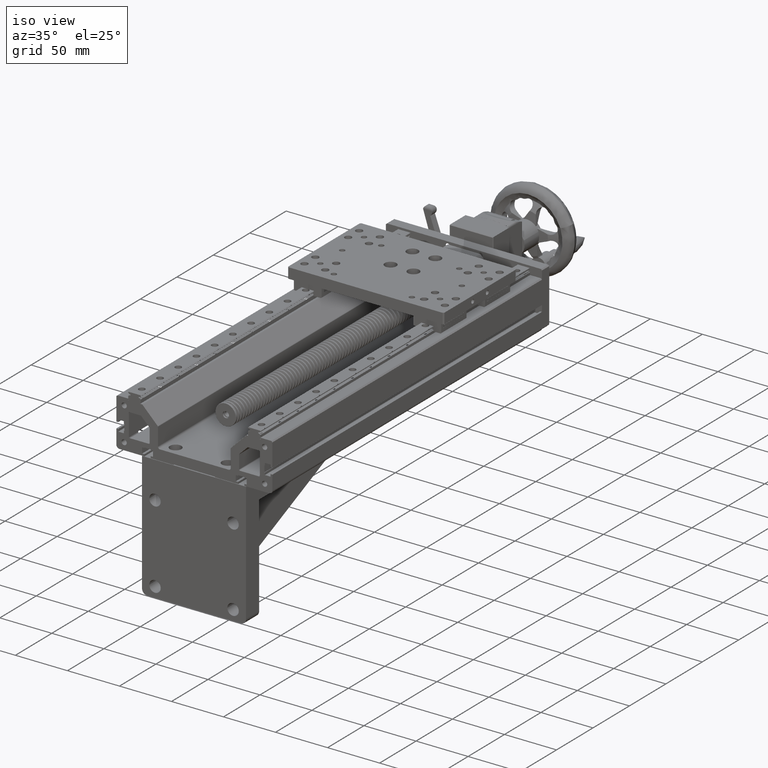
[diagram: clean part render]
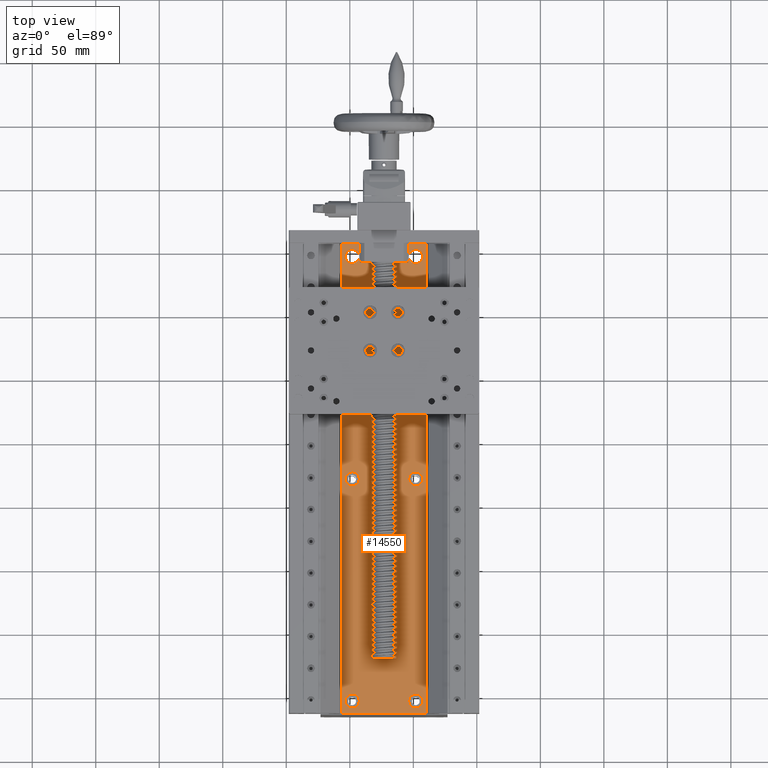
[diagram: tour spotlight — one face highlighted and labeled with its STEP entity id]
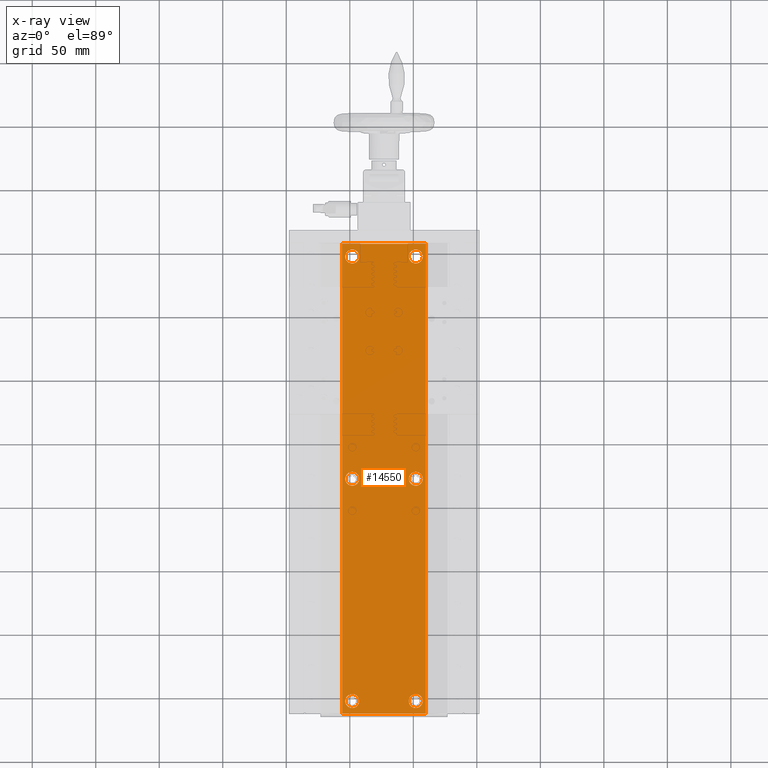
[diagram: x-ray of the same camera — body ghosted, this tour face saturated]
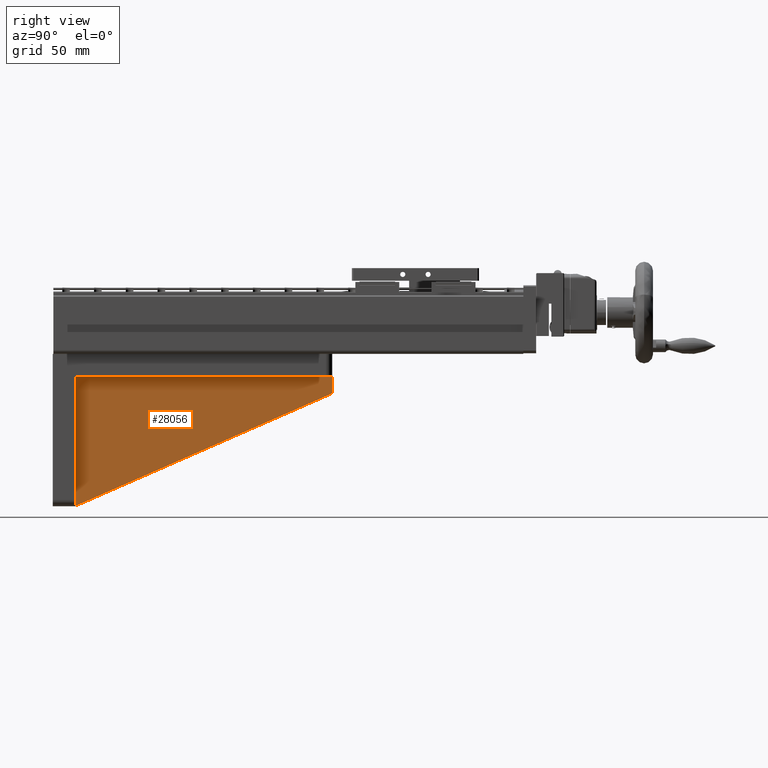
[diagram: tour spotlight — one face highlighted and labeled with its STEP entity id]
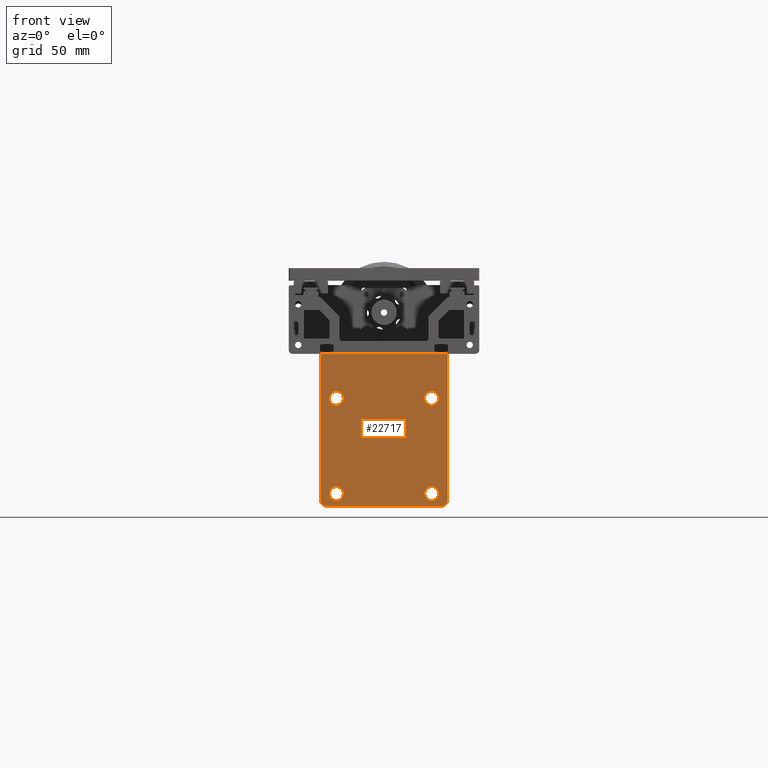
[diagram: tour spotlight — one face highlighted and labeled with its STEP entity id]
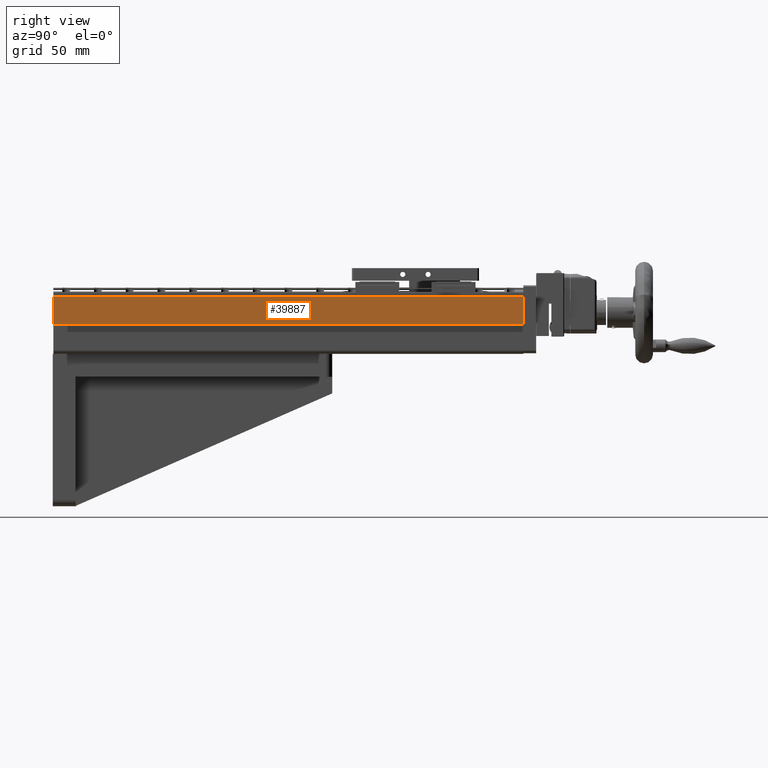
[diagram: tour spotlight — one face highlighted and labeled with its STEP entity id]
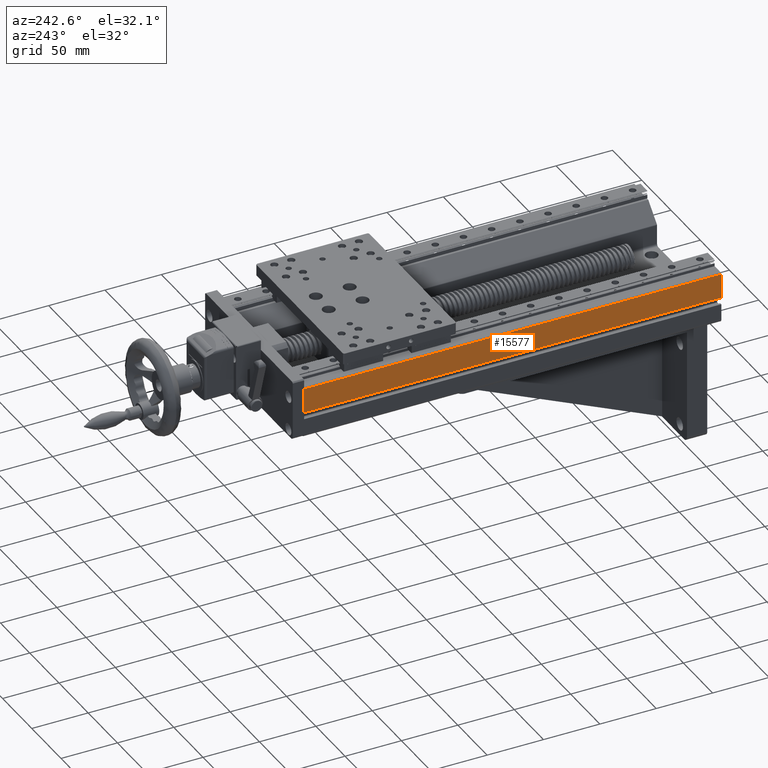
[diagram: tour spotlight — one face highlighted and labeled with its STEP entity id]
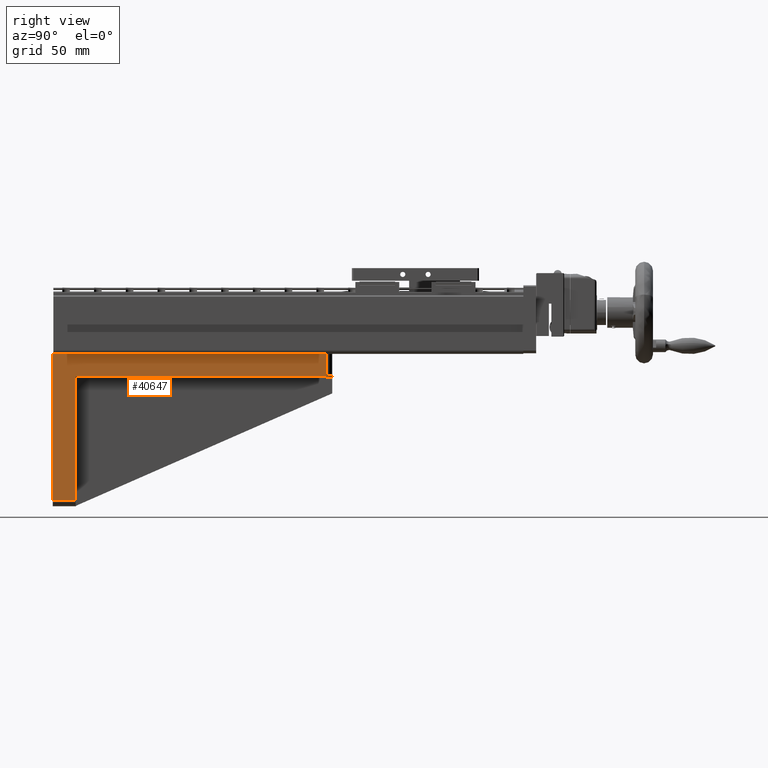
[diagram: tour spotlight — one face highlighted and labeled with its STEP entity id]
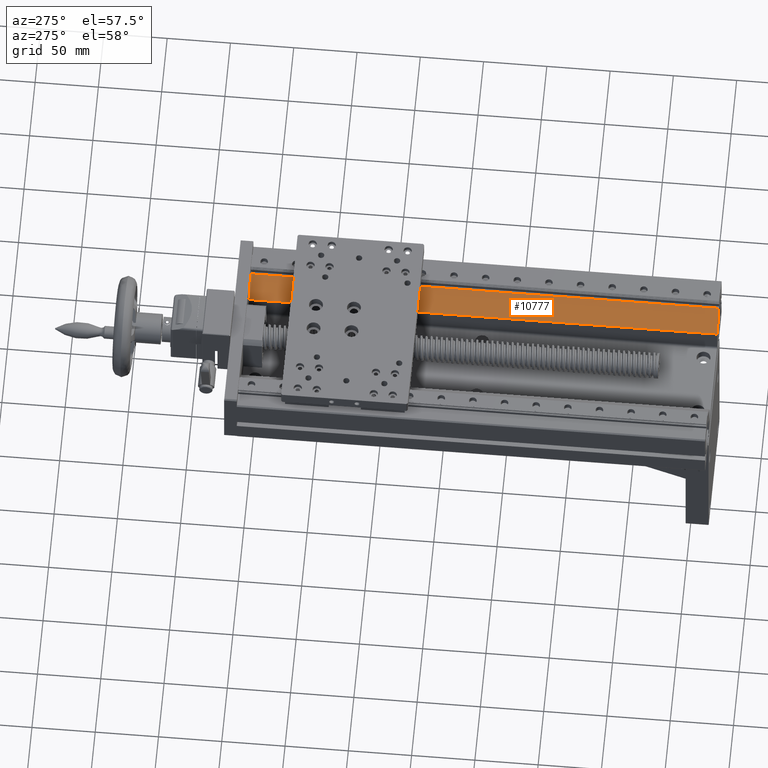
[diagram: tour spotlight — one face highlighted and labeled with its STEP entity id]
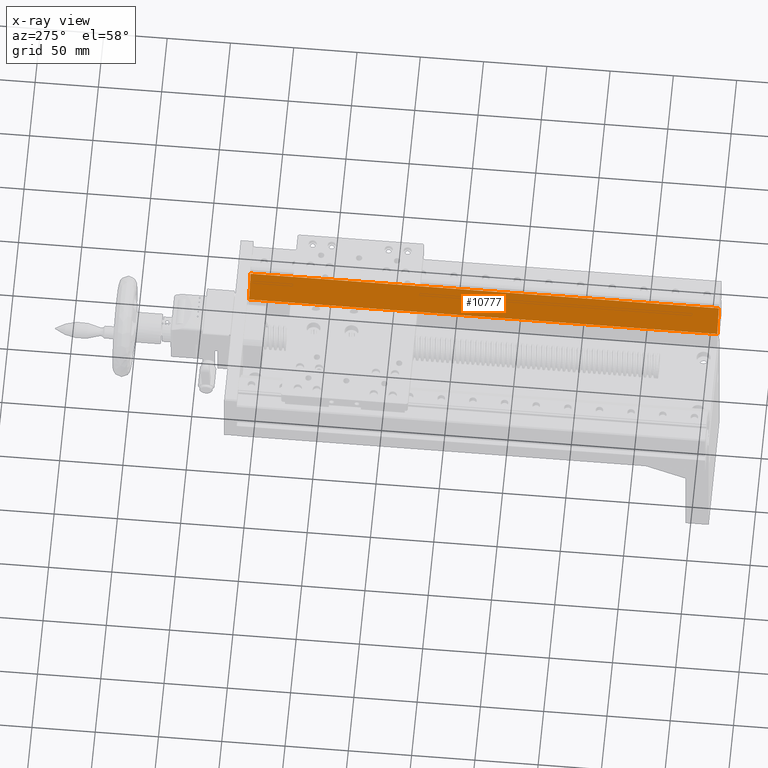
[diagram: x-ray of the same camera — body ghosted, this tour face saturated]
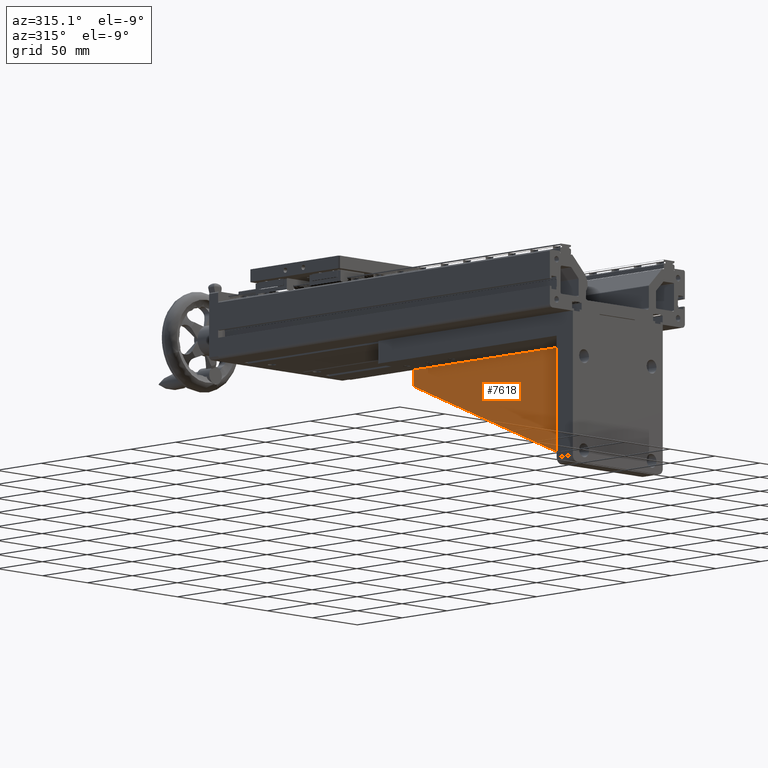
[diagram: tour spotlight — one face highlighted and labeled with its STEP entity id]
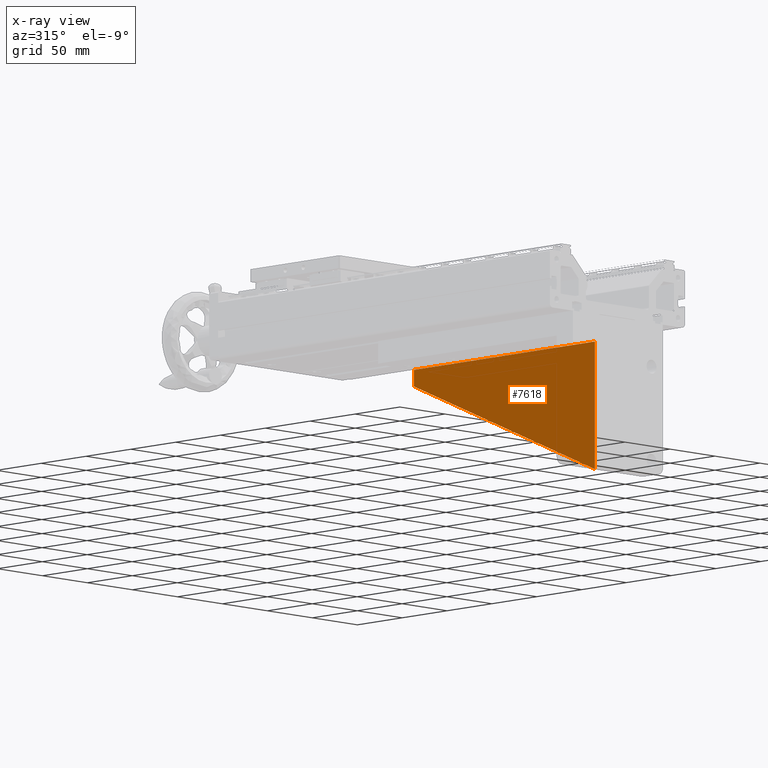
[diagram: x-ray of the same camera — body ghosted, this tour face saturated]
A machine part: a face-by-face anatomy tour. The part has 944 B-rep faces; the first image is the clean iso view, then the 8 largest visible faces are spotlighted one at a time (largest first), each with its STEP entity span.

Face 1 — top view, entity #14550. An x-ray twin of the same camera follows (body ghosted, this face saturated) — the face is partly hidden behind the body. In plain terms, the highlighted planar face has unit normal (0, 0, 1).
Definition (entity closure, byte-faithful):
#138 = EDGE_CURVE ( 'NONE', #23096, #27037, #366, .T. ) ;
#301 = CIRCLE ( 'NONE', #26352, 5.500000000000005329 ) ;
#366 = CIRCLE ( 'NONE', #20450, 5.500000000000005329 ) ;
#425 = CIRCLE ( 'NONE', #8553, 5.500000000000005329 ) ;
#464 = VERTEX_POINT ( 'NONE', #38641 ) ;
#1148 = DIRECTION ( 'NONE',  ( -1.000000000000000000, -6.123233995742214106E-17, 1.031308999433431077E-14 ) ) ;
#1571 = ORIENTED_EDGE ( 'NONE', *, *, #22392, .F. ) ;
#2426 = PLANE ( 'NONE',  #18468 ) ;
#2556 = DIRECTION ( 'NONE',  ( -1.053011137364023571E-16, -1.000000000000000000, 3.821117613674764034E-17 ) ) ;
#2557 = CARTESIAN_POINT ( 'NONE',  ( -48.07974840947948536, 70.78653025440200963, 70.00000000000206057 ) ) ;
#3031 = ORIENTED_EDGE ( 'NONE', *, *, #7118, .F. ) ;
#3588 = EDGE_CURVE ( 'NONE', #13025, #29306, #31675, .T. ) ;
#5533 = DIRECTION ( 'NONE',  ( 1.031308999433431234E-14, 3.821117613674655566E-17, 1.000000000000000000 ) ) ;
#5661 = VERTEX_POINT ( 'NONE', #16564 ) ;
#6310 = CARTESIAN_POINT ( 'NONE',  ( -56.07974840947716189, 255.7865302544020096, 70.00000000000206057 ) ) ;
#6465 = VERTEX_POINT ( 'NONE', #23214 ) ;
#6688 = EDGE_CURVE ( 'NONE', #20585, #464, #40563, .T. ) ;
#6933 = DIRECTION ( 'NONE',  ( 1.031308999433431234E-14, 3.821117613674655566E-17, 1.000000000000000000 ) ) ;
#7118 = EDGE_CURVE ( 'NONE', #43348, #44187, #301, .T. ) ;
#7934 = ORIENTED_EDGE ( 'NONE', *, *, #3588, .F. ) ;
#8250 = CIRCLE ( 'NONE', #18658, 5.500000000000005329 ) ;
#8553 = AXIS2_PLACEMENT_3D ( 'NONE', #20041, #26373, #16535 ) ;
#8644 = DIRECTION ( 'NONE',  ( 0.000000000000000000, 1.000000000000000000, 0.000000000000000000 ) ) ;
#8941 = CARTESIAN_POINT ( 'NONE',  ( 9.920251590522788376, -114.2134697455979904, 70.00000000000028422 ) ) ;
#9172 = DIRECTION ( 'NONE',  ( 1.053011137364023571E-16, 1.000000000000000000, -3.821117613674764034E-17 ) ) ;
#9213 = EDGE_CURVE ( 'NONE', #38414, #39870, #425, .T. ) ;
#9524 = CARTESIAN_POINT ( 'NONE',  ( 1.920251590520560825, 245.7865302544020096, 70.00000000000028422 ) ) ;
#9680 = DIRECTION ( 'NONE',  ( 0.000000000000000000, 1.000000000000000000, 0.000000000000000000 ) ) ;
#9854 = FACE_BOUND ( 'NONE', #11330, .T. ) ;
#10381 = DIRECTION ( 'NONE',  ( 1.182766006347821876E-16, 1.000000000000000000, 0.000000000000000000 ) ) ;
#11330 = EDGE_LOOP ( 'NONE', ( #27924, #28112 ) ) ;
#11524 = AXIS2_PLACEMENT_3D ( 'NONE', #40715, #44511, #8644 ) ;
#11748 = CARTESIAN_POINT ( 'NONE',  ( 1.920251590520503981, 65.28653025440200963, 70.00000000000028422 ) ) ;
#11887 = EDGE_CURVE ( 'NONE', #6465, #5661, #23682, .T. ) ;
#12693 = ORIENTED_EDGE ( 'NONE', *, *, #23118, .F. ) ;
#12901 = FACE_BOUND ( 'NONE', #45450, .T. ) ;
#12919 = DIRECTION ( 'NONE',  ( -1.000000000000000000, -6.123233995742214106E-17, 1.031308999433431077E-14 ) ) ;
#13025 = VERTEX_POINT ( 'NONE', #40076 ) ;
#13189 = CARTESIAN_POINT ( 'NONE',  ( -48.07974840947948536, -104.2134697455979762, 70.00000000000206057 ) ) ;
#13580 = FACE_OUTER_BOUND ( 'NONE', #31998, .T. ) ;
#13897 = ORIENTED_EDGE ( 'NONE', *, *, #19386, .T. ) ;
#14550 = ADVANCED_FACE ( 'NONE', ( #34866, #38410, #27831, #12901, #31102, #9854, #13580 ), #2426, .T. ) ;
#15104 = ORIENTED_EDGE ( 'NONE', *, *, #9213, .F. ) ;
#15343 = DIRECTION ( 'NONE',  ( 1.031308999433431234E-14, 3.821117613674655566E-17, 1.000000000000000000 ) ) ;
#15716 = CARTESIAN_POINT ( 'NONE',  ( -56.07974840947716189, 255.7865302544020096, 70.00000000000206057 ) ) ;
#15816 = AXIS2_PLACEMENT_3D ( 'NONE', #24176, #6933, #46040 ) ;
#16371 = VECTOR ( 'NONE', #2556, 1000.000000000000000 ) ;
#16382 = CARTESIAN_POINT ( 'NONE',  ( 9.920251590522843443, 255.7865302544020096, 70.00000000000028422 ) ) ;
#16535 = DIRECTION ( 'NONE',  ( 1.182766006347821876E-16, 1.000000000000000000, 0.000000000000000000 ) ) ;
#16564 = CARTESIAN_POINT ( 'NONE',  ( -48.07974840947952089, -109.7134697455979762, 70.00000000000206057 ) ) ;
#17665 = CARTESIAN_POINT ( 'NONE',  ( 9.920251590522843443, 255.7865302544020096, 70.00000000000028422 ) ) ;
#17968 = VERTEX_POINT ( 'NONE', #15716 ) ;
#18468 = AXIS2_PLACEMENT_3D ( 'NONE', #16382, #41469, #9172 ) ;
#18658 = AXIS2_PLACEMENT_3D ( 'NONE', #33903, #34363, #30376 ) ;
#18947 = CARTESIAN_POINT ( 'NONE',  ( 1.920251590520505980, -98.71346974559796195, 70.00000000000028422 ) ) ;
#19147 = EDGE_LOOP ( 'NONE', ( #12693, #3031 ) ) ;
#19386 = EDGE_CURVE ( 'NONE', #17968, #464, #42820, .T. ) ;
#19758 = CARTESIAN_POINT ( 'NONE',  ( 1.920251590520505314, 70.78653025440200963, 70.00000000000028422 ) ) ;
#20041 = CARTESIAN_POINT ( 'NONE',  ( 1.920251590520505314, 70.78653025440200963, 70.00000000000028422 ) ) ;
#20241 = LINE ( 'NONE', #17665, #16371 ) ;
#20450 = AXIS2_PLACEMENT_3D ( 'NONE', #21555, #35633, #10381 ) ;
#20553 = ORIENTED_EDGE ( 'NONE', *, *, #44103, .T. ) ;
#20585 = VERTEX_POINT ( 'NONE', #43052 ) ;
#20922 = AXIS2_PLACEMENT_3D ( 'NONE', #19758, #44419, #30739 ) ;
#21555 = CARTESIAN_POINT ( 'NONE',  ( 1.920251590520505314, -104.2134697455979619, 70.00000000000028422 ) ) ;
#21708 = EDGE_CURVE ( 'NONE', #29306, #13025, #8250, .T. ) ;
#21916 = EDGE_LOOP ( 'NONE', ( #44160, #44238 ) ) ;
#22392 = EDGE_CURVE ( 'NONE', #39870, #38414, #36659, .T. ) ;
#23096 = VERTEX_POINT ( 'NONE', #18947 ) ;
#23118 = EDGE_CURVE ( 'NONE', #44187, #43348, #32100, .T. ) ;
#23212 = CIRCLE ( 'NONE', #15816, 5.500000000000005329 ) ;
#23214 = CARTESIAN_POINT ( 'NONE',  ( -48.07974840947948536, -98.71346974559797616, 70.00000000000206057 ) ) ;
#23539 = EDGE_CURVE ( 'NONE', #28836, #32189, #34364, .T. ) ;
#23682 = CIRCLE ( 'NONE', #27447, 5.500000000000005329 ) ;
#23684 = ORIENTED_EDGE ( 'NONE', *, *, #42358, .F. ) ;
#23939 = CIRCLE ( 'NONE', #29159, 5.500000000000005329 ) ;
#24176 = CARTESIAN_POINT ( 'NONE',  ( -48.07974840947948536, -104.2134697455979762, 70.00000000000206057 ) ) ;
#24287 = ORIENTED_EDGE ( 'NONE', *, *, #138, .F. ) ;
#24298 = VERTEX_POINT ( 'NONE', #39133 ) ;
#26072 = CARTESIAN_POINT ( 'NONE',  ( 1.920251590520561491, 251.2865302544020096, 70.00000000000028422 ) ) ;
#26352 = AXIS2_PLACEMENT_3D ( 'NONE', #29597, #27935, #27229 ) ;
#26373 = DIRECTION ( 'NONE',  ( 1.031308999433431234E-14, 3.821117613674655566E-17, 1.000000000000000000 ) ) ;
#26488 = ORIENTED_EDGE ( 'NONE', *, *, #6688, .F. ) ;
#26512 = VECTOR ( 'NONE', #12919, 1000.000000000000000 ) ;
#27037 = VERTEX_POINT ( 'NONE', #31806 ) ;
#27229 = DIRECTION ( 'NONE',  ( 1.182766006347821876E-16, 1.000000000000000000, 0.000000000000000000 ) ) ;
#27274 = DIRECTION ( 'NONE',  ( 1.182766006347821876E-16, 1.000000000000000000, 0.000000000000000000 ) ) ;
#27447 = AXIS2_PLACEMENT_3D ( 'NONE', #13189, #30249, #9680 ) ;
#27831 = FACE_BOUND ( 'NONE', #19147, .T. ) ;
#27903 = EDGE_LOOP ( 'NONE', ( #15104, #1571 ) ) ;
#27924 = ORIENTED_EDGE ( 'NONE', *, *, #42054, .F. ) ;
#27935 = DIRECTION ( 'NONE',  ( 1.031308999433431234E-14, 3.821117613674655566E-17, 1.000000000000000000 ) ) ;
#28112 = ORIENTED_EDGE ( 'NONE', *, *, #23539, .F. ) ;
#28836 = VERTEX_POINT ( 'NONE', #34129 ) ;
#29159 = AXIS2_PLACEMENT_3D ( 'NONE', #33123, #15343, #43955 ) ;
#29306 = VERTEX_POINT ( 'NONE', #32824 ) ;
#29597 = CARTESIAN_POINT ( 'NONE',  ( 1.920251590520560825, 245.7865302544020096, 70.00000000000028422 ) ) ;
#30249 = DIRECTION ( 'NONE',  ( 1.031308999433431234E-14, 3.821117613674655566E-17, 1.000000000000000000 ) ) ;
#30376 = DIRECTION ( 'NONE',  ( 0.000000000000000000, 1.000000000000000000, 0.000000000000000000 ) ) ;
#30739 = DIRECTION ( 'NONE',  ( 1.182766006347821876E-16, 1.000000000000000000, 0.000000000000000000 ) ) ;
#30803 = ORIENTED_EDGE ( 'NONE', *, *, #21708, .F. ) ;
#31102 = FACE_BOUND ( 'NONE', #27903, .T. ) ;
#31161 = EDGE_CURVE ( 'NONE', #5661, #6465, #23212, .T. ) ;
#31675 = CIRCLE ( 'NONE', #11524, 5.500000000000005329 ) ;
#31806 = CARTESIAN_POINT ( 'NONE',  ( 1.920251590520470009, -109.7134697455979619, 70.00000000000028422 ) ) ;
#31998 = EDGE_LOOP ( 'NONE', ( #26488, #37310, #20553, #13897 ) ) ;
#32100 = CIRCLE ( 'NONE', #45656, 5.500000000000005329 ) ;
#32189 = VERTEX_POINT ( 'NONE', #34497 ) ;
#32597 = EDGE_LOOP ( 'NONE', ( #7934, #30803 ) ) ;
#32824 = CARTESIAN_POINT ( 'NONE',  ( -48.07974840947946404, 240.2865302544020096, 70.00000000000206057 ) ) ;
#32879 = LINE ( 'NONE', #35944, #35894 ) ;
#32914 = AXIS2_PLACEMENT_3D ( 'NONE', #44861, #5533, #38009 ) ;
#33123 = CARTESIAN_POINT ( 'NONE',  ( 1.920251590520505314, -104.2134697455979619, 70.00000000000028422 ) ) ;
#33903 = CARTESIAN_POINT ( 'NONE',  ( -48.07974840947942852, 245.7865302544020096, 70.00000000000206057 ) ) ;
#34129 = CARTESIAN_POINT ( 'NONE',  ( -48.07974840947948536, 65.28653025440200963, 70.00000000000206057 ) ) ;
#34363 = DIRECTION ( 'NONE',  ( 1.031308999433431234E-14, 3.821117613674655566E-17, 1.000000000000000000 ) ) ;
#34364 = CIRCLE ( 'NONE', #44896, 5.500000000000005329 ) ;
#34497 = CARTESIAN_POINT ( 'NONE',  ( -48.07974840947948536, 76.28653025440202384, 70.00000000000206057 ) ) ;
#34866 = FACE_BOUND ( 'NONE', #21916, .T. ) ;
#35022 = DIRECTION ( 'NONE',  ( -1.053011137364023571E-16, -1.000000000000000000, 3.821117613674764034E-17 ) ) ;
#35095 = CARTESIAN_POINT ( 'NONE',  ( 1.920251590520505980, 76.28653025440202384, 70.00000000000028422 ) ) ;
#35633 = DIRECTION ( 'NONE',  ( 1.031308999433431234E-14, 3.821117613674655566E-17, 1.000000000000000000 ) ) ;
#35894 = VECTOR ( 'NONE', #1148, 1000.000000000000000 ) ;
#35944 = CARTESIAN_POINT ( 'NONE',  ( 9.920251590522843443, 255.7865302544020096, 70.00000000000028422 ) ) ;
#36659 = CIRCLE ( 'NONE', #20922, 5.500000000000005329 ) ;
#36755 = DIRECTION ( 'NONE',  ( 1.031308999433431234E-14, 3.821117613674655566E-17, 1.000000000000000000 ) ) ;
#37108 = CARTESIAN_POINT ( 'NONE',  ( 1.920251590520525520, 240.2865302544020096, 70.00000000000028422 ) ) ;
#37310 = ORIENTED_EDGE ( 'NONE', *, *, #40421, .F. ) ;
#37408 = CIRCLE ( 'NONE', #32914, 5.500000000000005329 ) ;
#37595 = DIRECTION ( 'NONE',  ( 1.031308999433431234E-14, 3.821117613674655566E-17, 1.000000000000000000 ) ) ;
#38009 = DIRECTION ( 'NONE',  ( 0.000000000000000000, 1.000000000000000000, 0.000000000000000000 ) ) ;
#38410 = FACE_BOUND ( 'NONE', #32597, .T. ) ;
#38414 = VERTEX_POINT ( 'NONE', #35095 ) ;
#38641 = CARTESIAN_POINT ( 'NONE',  ( -56.07974840947721162, -114.2134697455980046, 70.00000000000206057 ) ) ;
#39133 = CARTESIAN_POINT ( 'NONE',  ( 9.920251590522843443, 255.7865302544020096, 70.00000000000028422 ) ) ;
#39870 = VERTEX_POINT ( 'NONE', #11748 ) ;
#40076 = CARTESIAN_POINT ( 'NONE',  ( -48.07974840947942852, 251.2865302544020096, 70.00000000000206057 ) ) ;
#40421 = EDGE_CURVE ( 'NONE', #24298, #20585, #20241, .T. ) ;
#40563 = LINE ( 'NONE', #8941, #26512 ) ;
#40715 = CARTESIAN_POINT ( 'NONE',  ( -48.07974840947942852, 245.7865302544020096, 70.00000000000206057 ) ) ;
#41469 = DIRECTION ( 'NONE',  ( 1.031308999433431234E-14, 3.821117613674655566E-17, 1.000000000000000000 ) ) ;
#42054 = EDGE_CURVE ( 'NONE', #32189, #28836, #37408, .T. ) ;
#42358 = EDGE_CURVE ( 'NONE', #27037, #23096, #23939, .T. ) ;
#42820 = LINE ( 'NONE', #6310, #43252 ) ;
#43052 = CARTESIAN_POINT ( 'NONE',  ( 9.920251590522788376, -114.2134697455979904, 70.00000000000028422 ) ) ;
#43252 = VECTOR ( 'NONE', #35022, 1000.000000000000000 ) ;
#43348 = VERTEX_POINT ( 'NONE', #37108 ) ;
#43955 = DIRECTION ( 'NONE',  ( 1.182766006347821876E-16, 1.000000000000000000, 0.000000000000000000 ) ) ;
#44103 = EDGE_CURVE ( 'NONE', #24298, #17968, #32879, .T. ) ;
#44160 = ORIENTED_EDGE ( 'NONE', *, *, #11887, .F. ) ;
#44187 = VERTEX_POINT ( 'NONE', #26072 ) ;
#44238 = ORIENTED_EDGE ( 'NONE', *, *, #31161, .F. ) ;
#44419 = DIRECTION ( 'NONE',  ( 1.031308999433431234E-14, 3.821117613674655566E-17, 1.000000000000000000 ) ) ;
#44511 = DIRECTION ( 'NONE',  ( 1.031308999433431234E-14, 3.821117613674655566E-17, 1.000000000000000000 ) ) ;
#44861 = CARTESIAN_POINT ( 'NONE',  ( -48.07974840947948536, 70.78653025440200963, 70.00000000000206057 ) ) ;
#44896 = AXIS2_PLACEMENT_3D ( 'NONE', #2557, #37595, #45380 ) ;
#45380 = DIRECTION ( 'NONE',  ( 0.000000000000000000, 1.000000000000000000, 0.000000000000000000 ) ) ;
#45450 = EDGE_LOOP ( 'NONE', ( #24287, #23684 ) ) ;
#45656 = AXIS2_PLACEMENT_3D ( 'NONE', #9524, #36755, #27274 ) ;
#46040 = DIRECTION ( 'NONE',  ( 0.000000000000000000, 1.000000000000000000, 0.000000000000000000 ) ) ;

Face 2 — right view, entity #28056. In plain terms, the highlighted planar face has unit normal (-1, 0, 0).
Definition (entity closure, byte-faithful):
#343 = CARTESIAN_POINT ( 'NONE',  ( -15.57974840947949602, 105.2865302544019954, 59.99999999999991473 ) ) ;
#1028 = VERTEX_POINT ( 'NONE', #41311 ) ;
#3590 = EDGE_CURVE ( 'NONE', #26193, #1028, #30595, .T. ) ;
#3965 = VECTOR ( 'NONE', #40850, 1000.000000000000000 ) ;
#5597 = ORIENTED_EDGE ( 'NONE', *, *, #3590, .T. ) ;
#6092 = LINE ( 'NONE', #20307, #32672 ) ;
#7115 = LINE ( 'NONE', #21298, #35199 ) ;
#7248 = CARTESIAN_POINT ( 'NONE',  ( -15.57974840948075190, -96.21346974559810405, -59.50000000000013500 ) ) ;
#7275 = PLANE ( 'NONE',  #39430 ) ;
#7727 = ORIENTED_EDGE ( 'NONE', *, *, #42851, .F. ) ;
#8454 = EDGE_LOOP ( 'NONE', ( #7727, #12014, #39294, #5597, #24570 ) ) ;
#10810 = VERTEX_POINT ( 'NONE', #37711 ) ;
#10992 = DIRECTION ( 'NONE',  ( 1.047444401652940007E-14, 0.000000000000000000, 1.000000000000000000 ) ) ;
#12014 = ORIENTED_EDGE ( 'NONE', *, *, #32742, .T. ) ;
#13131 = EDGE_CURVE ( 'NONE', #22063, #26193, #6092, .T. ) ;
#14483 = DIRECTION ( 'NONE',  ( -1.000000000000000000, 0.000000000000000000, 1.047444401652940007E-14 ) ) ;
#14528 = DIRECTION ( 'NONE',  ( 1.047444401652940007E-14, 1.541976423090499972E-15, 1.000000000000000000 ) ) ;
#16028 = LINE ( 'NONE', #38028, #3965 ) ;
#18180 = CARTESIAN_POINT ( 'NONE',  ( -15.57974840947968431, -96.71346974559800458, 41.99999999999991473 ) ) ;
#20307 = CARTESIAN_POINT ( 'NONE',  ( -15.57974840947968431, 105.2865302544019954, 41.99999999999991473 ) ) ;
#21298 = CARTESIAN_POINT ( 'NONE',  ( -15.57974840947982287, 105.2865302544019954, 28.84665226781850933 ) ) ;
#22063 = VERTEX_POINT ( 'NONE', #45400 ) ;
#24570 = ORIENTED_EDGE ( 'NONE', *, *, #32144, .F. ) ;
#26157 = CARTESIAN_POINT ( 'NONE',  ( -15.57974840947968431, -96.71346974559799037, 41.99999999999991473 ) ) ;
#26193 = VERTEX_POINT ( 'NONE', #18180 ) ;
#28056 = ADVANCED_FACE ( 'NONE', ( #39320 ), #7275, .F. ) ;
#30595 = LINE ( 'NONE', #26157, #37682 ) ;
#32144 = EDGE_CURVE ( 'NONE', #41507, #1028, #16028, .T. ) ;
#32323 = LINE ( 'NONE', #343, #33039 ) ;
#32672 = VECTOR ( 'NONE', #34593, 1000.000000000000000 ) ;
#32742 = EDGE_CURVE ( 'NONE', #10810, #22063, #32323, .T. ) ;
#33039 = VECTOR ( 'NONE', #14528, 1000.000000000000000 ) ;
#34593 = DIRECTION ( 'NONE',  ( -0.000000000000000000, -1.000000000000000000, -0.000000000000000000 ) ) ;
#35199 = VECTOR ( 'NONE', #35611, 1000.000000000000000 ) ;
#35611 = DIRECTION ( 'NONE',  ( -4.205961414682332769E-15, -0.9158392611404475581, -0.4015450756188140846 ) ) ;
#35782 = CARTESIAN_POINT ( 'NONE',  ( -15.57974840947949602, -114.7134697455980046, 59.99999999999991473 ) ) ;
#37650 = DIRECTION ( 'NONE',  ( -1.047444401652940007E-14, -0.000000000000000000, -1.000000000000000000 ) ) ;
#37682 = VECTOR ( 'NONE', #37650, 1000.000000000000000 ) ;
#37711 = CARTESIAN_POINT ( 'NONE',  ( -15.57974840947982287, 105.2865302544019386, 28.84665226781850222 ) ) ;
#38028 = CARTESIAN_POINT ( 'NONE',  ( -15.57974840948075190, -96.21346974559799037, -59.50000000000009237 ) ) ;
#39294 = ORIENTED_EDGE ( 'NONE', *, *, #13131, .T. ) ;
#39320 = FACE_OUTER_BOUND ( 'NONE', #8454, .T. ) ;
#39430 = AXIS2_PLACEMENT_3D ( 'NONE', #35782, #14483, #10992 ) ;
#40850 = DIRECTION ( 'NONE',  ( -7.406550393246719117E-15, -0.7071067811865549002, -0.7071067811865401342 ) ) ;
#41311 = CARTESIAN_POINT ( 'NONE',  ( -15.57974840948075190, -96.71346974559799037, -60.00000000000007816 ) ) ;
#41507 = VERTEX_POINT ( 'NONE', #7248 ) ;
#42851 = EDGE_CURVE ( 'NONE', #10810, #41507, #7115, .T. ) ;
#45400 = CARTESIAN_POINT ( 'NONE',  ( -15.57974840947968431, 105.2865302544019954, 41.99999999999991473 ) ) ;

Face 3 — front view, entity #22717. In plain terms, the highlighted planar face has unit normal (0, 1, 0).
Definition (entity closure, byte-faithful):
#102 = VERTEX_POINT ( 'NONE', #44399 ) ;
#602 = ORIENTED_EDGE ( 'NONE', *, *, #17028, .F. ) ;
#834 = CARTESIAN_POINT ( 'NONE',  ( -73.07974840947950668, -114.7134697455980046, 60.00000000000051870 ) ) ;
#963 = AXIS2_PLACEMENT_3D ( 'NONE', #9136, #12866, #5433 ) ;
#1067 = CARTESIAN_POINT ( 'NONE',  ( -60.57974840948065065, -114.7134697455980046, -49.99999999999961631 ) ) ;
#2916 = VERTEX_POINT ( 'NONE', #3412 ) ;
#3412 = CARTESIAN_POINT ( 'NONE',  ( -73.07974840947950668, -114.7134697455980046, 60.00000000000051870 ) ) ;
#3499 = VERTEX_POINT ( 'NONE', #11470 ) ;
#3651 = DIRECTION ( 'NONE',  ( -1.000000000000000000, 0.000000000000000000, 1.047444401652940007E-14 ) ) ;
#4600 = AXIS2_PLACEMENT_3D ( 'NONE', #25085, #7360, #17843 ) ;
#5021 = DIRECTION ( 'NONE',  ( 0.000000000000000000, -1.000000000000000000, 0.000000000000000000 ) ) ;
#5033 = CARTESIAN_POINT ( 'NONE',  ( 26.92025159052051464, -114.7134697455980046, 59.99999999999946709 ) ) ;
#5255 = DIRECTION ( 'NONE',  ( 1.000000000000000000, 0.000000000000000000, -1.009293658750142596E-14 ) ) ;
#5259 = VERTEX_POINT ( 'NONE', #20975 ) ;
#5433 = DIRECTION ( 'NONE',  ( 1.000000000000000000, 0.000000000000000000, -1.009293658750140861E-14 ) ) ;
#5498 = FACE_OUTER_BOUND ( 'NONE', #27466, .T. ) ;
#5890 = DIRECTION ( 'NONE',  ( -0.000000000000000000, 1.000000000000000000, -0.000000000000000000 ) ) ;
#6766 = CARTESIAN_POINT ( 'NONE',  ( -60.57974840947986195, -114.7134697455980046, 25.00000000000038369 ) ) ;
#6836 = CARTESIAN_POINT ( 'NONE',  ( -73.07974840948070039, -114.7134697455980046, -54.99999999999949551 ) ) ;
#7360 = DIRECTION ( 'NONE',  ( -0.000000000000000000, 1.000000000000000000, -0.000000000000000000 ) ) ;
#8041 = LINE ( 'NONE', #834, #33196 ) ;
#8433 = LINE ( 'NONE', #8877, #25607 ) ;
#8717 = ORIENTED_EDGE ( 'NONE', *, *, #37281, .T. ) ;
#8877 = CARTESIAN_POINT ( 'NONE',  ( 26.92025159051924632, -114.7134697455980046, -60.00000000000052580 ) ) ;
#8945 = VECTOR ( 'NONE', #44563, 1000.000000000000000 ) ;
#8963 = VERTEX_POINT ( 'NONE', #24661 ) ;
#8966 = VERTEX_POINT ( 'NONE', #35211 ) ;
#9136 = CARTESIAN_POINT ( 'NONE',  ( 14.42025159051934757, -114.7134697455980046, -50.00000000000040501 ) ) ;
#9186 = EDGE_LOOP ( 'NONE', ( #602, #45518 ) ) ;
#10423 = CARTESIAN_POINT ( 'NONE',  ( 19.92025159052014516, -114.7134697455980046, 24.99999999999954170 ) ) ;
#10672 = VERTEX_POINT ( 'NONE', #10423 ) ;
#10973 = CIRCLE ( 'NONE', #26622, 5.499999999999998224 ) ;
#11470 = CARTESIAN_POINT ( 'NONE',  ( -66.07974840947986195, -114.7134697455980046, 25.00000000000044054 ) ) ;
#11544 = ORIENTED_EDGE ( 'NONE', *, *, #33739, .F. ) ;
#11980 = DIRECTION ( 'NONE',  ( 0.000000000000000000, -1.000000000000000000, 0.000000000000000000 ) ) ;
#12086 = EDGE_CURVE ( 'NONE', #8966, #16882, #41622, .T. ) ;
#12351 = CARTESIAN_POINT ( 'NONE',  ( 14.42025159052013450, -114.7134697455980046, 24.99999999999959854 ) ) ;
#12686 = AXIS2_PLACEMENT_3D ( 'NONE', #44723, #20054, #20284 ) ;
#12688 = CARTESIAN_POINT ( 'NONE',  ( -73.07974840948075723, -114.7134697455980046, -59.99999999999948130 ) ) ;
#12866 = DIRECTION ( 'NONE',  ( 0.000000000000000000, -1.000000000000000000, 0.000000000000000000 ) ) ;
#13263 = DIRECTION ( 'NONE',  ( 0.000000000000000000, -1.000000000000000000, 0.000000000000000000 ) ) ;
#14340 = CIRCLE ( 'NONE', #963, 5.500000000000007994 ) ;
#14466 = CIRCLE ( 'NONE', #32398, 5.499999999999998224 ) ;
#14707 = CIRCLE ( 'NONE', #31879, 4.999999999999990230 ) ;
#15205 = EDGE_LOOP ( 'NONE', ( #31824, #16011 ) ) ;
#15474 = CARTESIAN_POINT ( 'NONE',  ( -60.57974840947986195, -114.7134697455980046, 25.00000000000038369 ) ) ;
#15507 = PLANE ( 'NONE',  #32933 ) ;
#15858 = CARTESIAN_POINT ( 'NONE',  ( 14.42025159051934757, -114.7134697455980046, -50.00000000000040501 ) ) ;
#16011 = ORIENTED_EDGE ( 'NONE', *, *, #35795, .F. ) ;
#16142 = EDGE_CURVE ( 'NONE', #10672, #29420, #30489, .T. ) ;
#16632 = VECTOR ( 'NONE', #37732, 1000.000000000000000 ) ;
#16711 = ORIENTED_EDGE ( 'NONE', *, *, #43911, .F. ) ;
#16834 = DIRECTION ( 'NONE',  ( 1.000000000000000000, 0.000000000000000000, -9.714451465470138661E-15 ) ) ;
#16882 = VERTEX_POINT ( 'NONE', #34320 ) ;
#17028 = EDGE_CURVE ( 'NONE', #24676, #3499, #45591, .T. ) ;
#17221 = CIRCLE ( 'NONE', #4600, 4.999999999999990230 ) ;
#17843 = DIRECTION ( 'NONE',  ( 1.000000000000000000, 0.000000000000000000, -1.110223024625158749E-14 ) ) ;
#17887 = EDGE_CURVE ( 'NONE', #38420, #2916, #30190, .T. ) ;
#17943 = CIRCLE ( 'NONE', #23896, 5.500000000000011546 ) ;
#18017 = ORIENTED_EDGE ( 'NONE', *, *, #35323, .F. ) ;
#18268 = CARTESIAN_POINT ( 'NONE',  ( 8.920251590520123841, -114.7134697455980046, 24.99999999999965894 ) ) ;
#19337 = DIRECTION ( 'NONE',  ( 1.000000000000000000, 0.000000000000000000, -1.072374512422024024E-14 ) ) ;
#19347 = DIRECTION ( 'NONE',  ( 0.000000000000000000, -1.000000000000000000, 0.000000000000000000 ) ) ;
#19462 = DIRECTION ( 'NONE',  ( -1.000000000000000000, 0.000000000000000000, 1.047444401652940007E-14 ) ) ;
#19915 = FACE_BOUND ( 'NONE', #31069, .T. ) ;
#20054 = DIRECTION ( 'NONE',  ( 0.000000000000000000, -1.000000000000000000, 0.000000000000000000 ) ) ;
#20284 = DIRECTION ( 'NONE',  ( 1.000000000000000000, 0.000000000000000000, -1.072374512422024024E-14 ) ) ;
#20975 = CARTESIAN_POINT ( 'NONE',  ( 19.92025159051936001, -114.7134697455980046, -50.00000000000046185 ) ) ;
#22009 = DIRECTION ( 'NONE',  ( 0.000000000000000000, -1.000000000000000000, 0.000000000000000000 ) ) ;
#22620 = VERTEX_POINT ( 'NONE', #25331 ) ;
#22717 = ADVANCED_FACE ( 'NONE', ( #5498, #19915, #40798, #33510, #45056 ), #15507, .F. ) ;
#23896 = AXIS2_PLACEMENT_3D ( 'NONE', #12351, #13263, #19337 ) ;
#24661 = CARTESIAN_POINT ( 'NONE',  ( -68.07974840948075723, -114.7134697455980046, -59.99999999999953815 ) ) ;
#24676 = VERTEX_POINT ( 'NONE', #35475 ) ;
#25085 = CARTESIAN_POINT ( 'NONE',  ( -68.07974840948070039, -114.7134697455980046, -54.99999999999955236 ) ) ;
#25331 = CARTESIAN_POINT ( 'NONE',  ( 26.92025159051929961, -114.7134697455980046, -55.00000000000053291 ) ) ;
#25607 = VECTOR ( 'NONE', #36736, 1000.000000000000000 ) ;
#26220 = DIRECTION ( 'NONE',  ( 1.000000000000000000, 0.000000000000000000, -1.072374512422026548E-14 ) ) ;
#26241 = LINE ( 'NONE', #12688, #16632 ) ;
#26622 = AXIS2_PLACEMENT_3D ( 'NONE', #15474, #11980, #26220 ) ;
#26638 = EDGE_LOOP ( 'NONE', ( #41314, #11544 ) ) ;
#26702 = CARTESIAN_POINT ( 'NONE',  ( -73.07974840948075723, -114.7134697455980046, -59.99999999999948130 ) ) ;
#26902 = EDGE_CURVE ( 'NONE', #3499, #24676, #10973, .T. ) ;
#27466 = EDGE_LOOP ( 'NONE', ( #39191, #45052, #43005, #18017, #8717, #35543 ) ) ;
#27753 = EDGE_CURVE ( 'NONE', #22620, #37844, #14707, .T. ) ;
#29420 = VERTEX_POINT ( 'NONE', #18268 ) ;
#30018 = EDGE_CURVE ( 'NONE', #5259, #102, #43306, .T. ) ;
#30190 = LINE ( 'NONE', #41468, #8945 ) ;
#30489 = CIRCLE ( 'NONE', #12686, 5.500000000000011546 ) ;
#31069 = EDGE_LOOP ( 'NONE', ( #31601, #16711 ) ) ;
#31601 = ORIENTED_EDGE ( 'NONE', *, *, #16142, .F. ) ;
#31824 = ORIENTED_EDGE ( 'NONE', *, *, #12086, .F. ) ;
#31879 = AXIS2_PLACEMENT_3D ( 'NONE', #37463, #5890, #16834 ) ;
#32398 = AXIS2_PLACEMENT_3D ( 'NONE', #34180, #5021, #5255 ) ;
#32933 = AXIS2_PLACEMENT_3D ( 'NONE', #26702, #33968, #19462 ) ;
#33196 = VECTOR ( 'NONE', #3651, 1000.000000000000000 ) ;
#33479 = EDGE_CURVE ( 'NONE', #37844, #8963, #26241, .T. ) ;
#33510 = FACE_BOUND ( 'NONE', #26638, .T. ) ;
#33739 = EDGE_CURVE ( 'NONE', #102, #5259, #14340, .T. ) ;
#33968 = DIRECTION ( 'NONE',  ( 0.000000000000000000, 1.000000000000000000, 0.000000000000000000 ) ) ;
#34180 = CARTESIAN_POINT ( 'NONE',  ( -60.57974840948065065, -114.7134697455980046, -49.99999999999961631 ) ) ;
#34320 = CARTESIAN_POINT ( 'NONE',  ( -66.07974840948065776, -114.7134697455980046, -49.99999999999955946 ) ) ;
#34567 = DIRECTION ( 'NONE',  ( 1.000000000000000000, 0.000000000000000000, -1.072374512422026548E-14 ) ) ;
#34883 = AXIS2_PLACEMENT_3D ( 'NONE', #1067, #22009, #43170 ) ;
#35211 = CARTESIAN_POINT ( 'NONE',  ( -55.07974840948066486, -114.7134697455980046, -49.99999999999968026 ) ) ;
#35323 = EDGE_CURVE ( 'NONE', #44527, #22620, #8433, .T. ) ;
#35475 = CARTESIAN_POINT ( 'NONE',  ( -55.07974840947986905, -114.7134697455980046, 25.00000000000032685 ) ) ;
#35543 = ORIENTED_EDGE ( 'NONE', *, *, #17887, .F. ) ;
#35795 = EDGE_CURVE ( 'NONE', #16882, #8966, #14466, .T. ) ;
#36736 = DIRECTION ( 'NONE',  ( -1.047444401652940007E-14, -0.000000000000000000, -1.000000000000000000 ) ) ;
#37281 = EDGE_CURVE ( 'NONE', #44527, #2916, #8041, .T. ) ;
#37463 = CARTESIAN_POINT ( 'NONE',  ( 21.92025159051929606, -114.7134697455980046, -55.00000000000049027 ) ) ;
#37732 = DIRECTION ( 'NONE',  ( -1.000000000000000000, 0.000000000000000000, 1.047444401652940007E-14 ) ) ;
#37844 = VERTEX_POINT ( 'NONE', #45218 ) ;
#38038 = AXIS2_PLACEMENT_3D ( 'NONE', #6766, #42107, #34567 ) ;
#38420 = VERTEX_POINT ( 'NONE', #6836 ) ;
#39191 = ORIENTED_EDGE ( 'NONE', *, *, #42189, .F. ) ;
#40301 = AXIS2_PLACEMENT_3D ( 'NONE', #15858, #19347, #44709 ) ;
#40798 = FACE_BOUND ( 'NONE', #9186, .T. ) ;
#41314 = ORIENTED_EDGE ( 'NONE', *, *, #30018, .F. ) ;
#41468 = CARTESIAN_POINT ( 'NONE',  ( -73.07974840947950668, -114.7134697455980046, 60.00000000000051870 ) ) ;
#41622 = CIRCLE ( 'NONE', #34883, 5.499999999999998224 ) ;
#42107 = DIRECTION ( 'NONE',  ( 0.000000000000000000, -1.000000000000000000, 0.000000000000000000 ) ) ;
#42189 = EDGE_CURVE ( 'NONE', #8963, #38420, #17221, .T. ) ;
#43005 = ORIENTED_EDGE ( 'NONE', *, *, #27753, .F. ) ;
#43170 = DIRECTION ( 'NONE',  ( 1.000000000000000000, 0.000000000000000000, -1.009293658750142596E-14 ) ) ;
#43306 = CIRCLE ( 'NONE', #40301, 5.500000000000007994 ) ;
#43911 = EDGE_CURVE ( 'NONE', #29420, #10672, #17943, .T. ) ;
#44399 = CARTESIAN_POINT ( 'NONE',  ( 8.920251590519336915, -114.7134697455980046, -50.00000000000034817 ) ) ;
#44527 = VERTEX_POINT ( 'NONE', #5033 ) ;
#44563 = DIRECTION ( 'NONE',  ( 1.047444401652940007E-14, 0.000000000000000000, 1.000000000000000000 ) ) ;
#44709 = DIRECTION ( 'NONE',  ( 1.000000000000000000, 0.000000000000000000, -1.009293658750140861E-14 ) ) ;
#44723 = CARTESIAN_POINT ( 'NONE',  ( 14.42025159052013450, -114.7134697455980046, 24.99999999999959854 ) ) ;
#45052 = ORIENTED_EDGE ( 'NONE', *, *, #33479, .F. ) ;
#45056 = FACE_BOUND ( 'NONE', #15205, .T. ) ;
#45218 = CARTESIAN_POINT ( 'NONE',  ( 21.92025159051924277, -114.7134697455980046, -60.00000000000048317 ) ) ;
#45518 = ORIENTED_EDGE ( 'NONE', *, *, #26902, .F. ) ;
#45591 = CIRCLE ( 'NONE', #38038, 5.499999999999998224 ) ;

Face 4 — right view, entity #39887. In plain terms, the highlighted planar face has unit normal (1, -0, -0).
Definition (entity closure, byte-faithful):
#1346 = LINE ( 'NONE', #29810, #15061 ) ;
#1633 = ORIENTED_EDGE ( 'NONE', *, *, #2497, .F. ) ;
#2497 = EDGE_CURVE ( 'NONE', #22839, #32293, #1346, .T. ) ;
#3754 = CARTESIAN_POINT ( 'NONE',  ( 51.92025159052254679, 255.7865302544020096, 83.00000000000018474 ) ) ;
#5267 = EDGE_CURVE ( 'NONE', #7653, #22839, #28225, .T. ) ;
#6990 = ORIENTED_EDGE ( 'NONE', *, *, #29279, .T. ) ;
#7541 = ORIENTED_EDGE ( 'NONE', *, *, #5267, .F. ) ;
#7653 = VERTEX_POINT ( 'NONE', #35674 ) ;
#10367 = VECTOR ( 'NONE', #25567, 1000.000000000000000 ) ;
#10707 = VECTOR ( 'NONE', #28690, 1000.000000000000000 ) ;
#11332 = CARTESIAN_POINT ( 'NONE',  ( 51.92025159052276706, 255.7865302544020096, 105.0000000000004263 ) ) ;
#13606 = EDGE_LOOP ( 'NONE', ( #1633, #7541, #6990, #34415 ) ) ;
#15061 = VECTOR ( 'NONE', #23221, 1000.000000000000000 ) ;
#16801 = FACE_OUTER_BOUND ( 'NONE', #13606, .T. ) ;
#17107 = CARTESIAN_POINT ( 'NONE',  ( 51.92025159052248995, -114.2134697455979904, 83.00000000000018474 ) ) ;
#17453 = VERTEX_POINT ( 'NONE', #37535 ) ;
#18179 = CARTESIAN_POINT ( 'NONE',  ( 51.92025159052276706, 255.7865302544020096, 105.0000000000004263 ) ) ;
#18542 = LINE ( 'NONE', #11332, #10367 ) ;
#18979 = PLANE ( 'NONE',  #37274 ) ;
#22232 = DIRECTION ( 'NONE',  ( 1.000000000000000000, -1.053011137364027515E-16, -1.031308999433431077E-14 ) ) ;
#22839 = VERTEX_POINT ( 'NONE', #17107 ) ;
#23221 = DIRECTION ( 'NONE',  ( 1.031308999433431234E-14, 3.821117613674655566E-17, 1.000000000000000000 ) ) ;
#25567 = DIRECTION ( 'NONE',  ( 1.031308999433431234E-14, 3.821117613674655566E-17, 1.000000000000000000 ) ) ;
#28225 = LINE ( 'NONE', #3754, #10707 ) ;
#28690 = DIRECTION ( 'NONE',  ( -1.053011137364023571E-16, -1.000000000000000000, 3.821117613674764034E-17 ) ) ;
#29279 = EDGE_CURVE ( 'NONE', #7653, #17453, #18542, .T. ) ;
#29810 = CARTESIAN_POINT ( 'NONE',  ( 51.92025159052271732, -114.2134697455979904, 105.0000000000004263 ) ) ;
#32293 = VERTEX_POINT ( 'NONE', #35197 ) ;
#34415 = ORIENTED_EDGE ( 'NONE', *, *, #40053, .T. ) ;
#35197 = CARTESIAN_POINT ( 'NONE',  ( 51.92025159052271732, -114.2134697455979904, 105.0000000000004263 ) ) ;
#35674 = CARTESIAN_POINT ( 'NONE',  ( 51.92025159052254679, 255.7865302544020096, 83.00000000000018474 ) ) ;
#37274 = AXIS2_PLACEMENT_3D ( 'NONE', #43640, #22232, #41638 ) ;
#37535 = CARTESIAN_POINT ( 'NONE',  ( 51.92025159052276706, 255.7865302544020096, 105.0000000000004263 ) ) ;
#39887 = ADVANCED_FACE ( 'NONE', ( #16801 ), #18979, .T. ) ;
#40053 = EDGE_CURVE ( 'NONE', #17453, #32293, #40194, .T. ) ;
#40194 = LINE ( 'NONE', #18179, #44828 ) ;
#40440 = DIRECTION ( 'NONE',  ( -1.053011137364023571E-16, -1.000000000000000000, 3.821117613674764034E-17 ) ) ;
#41638 = DIRECTION ( 'NONE',  ( 1.053011137364023571E-16, 1.000000000000000000, -3.821117613674764034E-17 ) ) ;
#43640 = CARTESIAN_POINT ( 'NONE',  ( 51.92025159052276706, 255.7865302544020096, 105.0000000000004263 ) ) ;
#44828 = VECTOR ( 'NONE', #40440, 1000.000000000000000 ) ;

Face 5 — auxiliary view, entity #15577. In plain terms, the highlighted planar face has unit normal (-1, -0, -0).
Definition (entity closure, byte-faithful):
#1149 = EDGE_LOOP ( 'NONE', ( #16972, #11119, #21063, #18755 ) ) ;
#1243 = CARTESIAN_POINT ( 'NONE',  ( -98.07974840947753137, -114.2134697455980046, 83.00000000000196110 ) ) ;
#6455 = CARTESIAN_POINT ( 'NONE',  ( -98.07974840947753137, 255.7865302544020096, 83.00000000000196110 ) ) ;
#6657 = PLANE ( 'NONE',  #20111 ) ;
#10324 = DIRECTION ( 'NONE',  ( 7.043040270567619133E-14, -3.821117613674161295E-17, -1.000000000000000000 ) ) ;
#10610 = DIRECTION ( 'NONE',  ( 7.043040270567619133E-14, -3.821117613674161295E-17, -1.000000000000000000 ) ) ;
#11119 = ORIENTED_EDGE ( 'NONE', *, *, #28136, .F. ) ;
#12212 = VECTOR ( 'NONE', #20427, 1000.000000000000000 ) ;
#15577 = ADVANCED_FACE ( 'NONE', ( #24601 ), #6657, .T. ) ;
#16972 = ORIENTED_EDGE ( 'NONE', *, *, #40952, .F. ) ;
#18477 = VECTOR ( 'NONE', #44497, 1000.000000000000000 ) ;
#18755 = ORIENTED_EDGE ( 'NONE', *, *, #35659, .T. ) ;
#20111 = AXIS2_PLACEMENT_3D ( 'NONE', #45778, #39374, #28104 ) ;
#20427 = DIRECTION ( 'NONE',  ( -1.053011137364023571E-16, -1.000000000000000000, 3.821117613674764034E-17 ) ) ;
#21063 = ORIENTED_EDGE ( 'NONE', *, *, #39744, .T. ) ;
#22391 = LINE ( 'NONE', #30118, #18477 ) ;
#23626 = CARTESIAN_POINT ( 'NONE',  ( -98.07974840947908035, -114.2134697455980046, 105.0000000000022027 ) ) ;
#23718 = VECTOR ( 'NONE', #10610, 1000.000000000000000 ) ;
#24601 = FACE_OUTER_BOUND ( 'NONE', #1149, .T. ) ;
#25297 = CARTESIAN_POINT ( 'NONE',  ( -98.07974840947908035, 255.7865302544020096, 105.0000000000022027 ) ) ;
#28104 = DIRECTION ( 'NONE',  ( 7.043040270567617871E-14, -3.821117613674161295E-17, -1.000000000000000000 ) ) ;
#28136 = EDGE_CURVE ( 'NONE', #32651, #45237, #22391, .T. ) ;
#30118 = CARTESIAN_POINT ( 'NONE',  ( -98.07974840947908035, 255.7865302544020096, 105.0000000000022027 ) ) ;
#31583 = LINE ( 'NONE', #34873, #32837 ) ;
#32651 = VERTEX_POINT ( 'NONE', #36297 ) ;
#32837 = VECTOR ( 'NONE', #10324, 1000.000000000000000 ) ;
#33686 = CARTESIAN_POINT ( 'NONE',  ( -98.07974840947753137, 255.7865302544020096, 83.00000000000196110 ) ) ;
#34873 = CARTESIAN_POINT ( 'NONE',  ( -98.07974840947908035, -114.2134697455980046, 105.0000000000022027 ) ) ;
#35659 = EDGE_CURVE ( 'NONE', #36564, #37780, #38483, .T. ) ;
#36297 = CARTESIAN_POINT ( 'NONE',  ( -98.07974840947908035, 255.7865302544020096, 105.0000000000022027 ) ) ;
#36564 = VERTEX_POINT ( 'NONE', #33686 ) ;
#37780 = VERTEX_POINT ( 'NONE', #1243 ) ;
#38483 = LINE ( 'NONE', #6455, #12212 ) ;
#39374 = DIRECTION ( 'NONE',  ( -1.000000000000000000, -6.123233995742521023E-17, -7.043040270567617871E-14 ) ) ;
#39744 = EDGE_CURVE ( 'NONE', #32651, #36564, #43398, .T. ) ;
#40952 = EDGE_CURVE ( 'NONE', #45237, #37780, #31583, .T. ) ;
#43398 = LINE ( 'NONE', #25297, #23718 ) ;
#44497 = DIRECTION ( 'NONE',  ( -1.053011137364023571E-16, -1.000000000000000000, 3.821117613674764034E-17 ) ) ;
#45237 = VERTEX_POINT ( 'NONE', #23626 ) ;
#45778 = CARTESIAN_POINT ( 'NONE',  ( -98.07974840947908035, 255.7865302544020096, 105.0000000000022027 ) ) ;

Face 6 — right view, entity #40647. In plain terms, the highlighted planar face has unit normal (-1, 0, 0).
Definition (entity closure, byte-faithful):
#645 = PLANE ( 'NONE',  #27550 ) ;
#3781 = ORIENTED_EDGE ( 'NONE', *, *, #9084, .F. ) ;
#3992 = VECTOR ( 'NONE', #22701, 1000.000000000000000 ) ;
#4609 = LINE ( 'NONE', #39662, #36965 ) ;
#5033 = CARTESIAN_POINT ( 'NONE',  ( 26.92025159052051464, -114.7134697455980046, 59.99999999999946709 ) ) ;
#8433 = LINE ( 'NONE', #8877, #25607 ) ;
#8877 = CARTESIAN_POINT ( 'NONE',  ( 26.92025159051924632, -114.7134697455980046, -60.00000000000052580 ) ) ;
#9084 = EDGE_CURVE ( 'NONE', #37077, #12929, #4609, .T. ) ;
#10429 = DIRECTION ( 'NONE',  ( 1.047444401652940007E-14, 0.000000000000000000, 1.000000000000000000 ) ) ;
#11037 = EDGE_CURVE ( 'NONE', #24165, #39636, #24032, .T. ) ;
#11116 = CARTESIAN_POINT ( 'NONE',  ( 26.92025159052050753, -114.7134697455980046, 59.99999999999946709 ) ) ;
#12681 = CARTESIAN_POINT ( 'NONE',  ( 26.92025159052050753, 100.2865302544019812, 59.99999999999946709 ) ) ;
#12929 = VERTEX_POINT ( 'NONE', #42244 ) ;
#15732 = LINE ( 'NONE', #37717, #3992 ) ;
#18116 = DIRECTION ( 'NONE',  ( -1.000000000000000000, 0.000000000000000000, 1.047444401652940007E-14 ) ) ;
#18767 = VECTOR ( 'NONE', #33558, 1000.000000000000000 ) ;
#19268 = CARTESIAN_POINT ( 'NONE',  ( 26.92025159052031569, -114.7134697455980046, 41.99999999999946709 ) ) ;
#21398 = VECTOR ( 'NONE', #34341, 1000.000000000000000 ) ;
#21686 = EDGE_LOOP ( 'NONE', ( #41892, #42604, #44600, #25725, #3781, #40651 ) ) ;
#22046 = DIRECTION ( 'NONE',  ( -1.047444401652940007E-14, -0.000000000000000000, -1.000000000000000000 ) ) ;
#22535 = CARTESIAN_POINT ( 'NONE',  ( 26.92025159052032279, -96.71346974559799037, 41.99999999999946709 ) ) ;
#22620 = VERTEX_POINT ( 'NONE', #25331 ) ;
#22701 = DIRECTION ( 'NONE',  ( -0.000000000000000000, -1.000000000000000000, -0.000000000000000000 ) ) ;
#22769 = LINE ( 'NONE', #19268, #18767 ) ;
#23442 = CARTESIAN_POINT ( 'NONE',  ( 26.92025159052031569, 100.2865302544019812, 41.99999999999946709 ) ) ;
#24032 = LINE ( 'NONE', #31524, #21398 ) ;
#24165 = VERTEX_POINT ( 'NONE', #12681 ) ;
#25331 = CARTESIAN_POINT ( 'NONE',  ( 26.92025159051929961, -114.7134697455980046, -55.00000000000053291 ) ) ;
#25607 = VECTOR ( 'NONE', #36736, 1000.000000000000000 ) ;
#25725 = ORIENTED_EDGE ( 'NONE', *, *, #35092, .F. ) ;
#27550 = AXIS2_PLACEMENT_3D ( 'NONE', #11116, #18116, #10429 ) ;
#29642 = LINE ( 'NONE', #40681, #36150 ) ;
#31524 = CARTESIAN_POINT ( 'NONE',  ( 26.92025159052050753, 100.2865302544019812, 59.99999999999946709 ) ) ;
#33291 = EDGE_CURVE ( 'NONE', #39636, #37077, #22769, .T. ) ;
#33558 = DIRECTION ( 'NONE',  ( -0.000000000000000000, -1.000000000000000000, -0.000000000000000000 ) ) ;
#34341 = DIRECTION ( 'NONE',  ( -1.047444401652940007E-14, -0.000000000000000000, -1.000000000000000000 ) ) ;
#35092 = EDGE_CURVE ( 'NONE', #12929, #22620, #15732, .T. ) ;
#35323 = EDGE_CURVE ( 'NONE', #44527, #22620, #8433, .T. ) ;
#36150 = VECTOR ( 'NONE', #43778, 1000.000000000000000 ) ;
#36405 = EDGE_CURVE ( 'NONE', #24165, #44527, #29642, .T. ) ;
#36736 = DIRECTION ( 'NONE',  ( -1.047444401652940007E-14, -0.000000000000000000, -1.000000000000000000 ) ) ;
#36965 = VECTOR ( 'NONE', #22046, 1000.000000000000000 ) ;
#37077 = VERTEX_POINT ( 'NONE', #22535 ) ;
#37717 = CARTESIAN_POINT ( 'NONE',  ( 26.92025159051929961, -114.7134697455980046, -55.00000000000053291 ) ) ;
#39636 = VERTEX_POINT ( 'NONE', #23442 ) ;
#39662 = CARTESIAN_POINT ( 'NONE',  ( 26.92025159052050753, -96.71346974559799037, 59.99999999999946709 ) ) ;
#40647 = ADVANCED_FACE ( 'NONE', ( #42520 ), #645, .F. ) ;
#40651 = ORIENTED_EDGE ( 'NONE', *, *, #33291, .F. ) ;
#40681 = CARTESIAN_POINT ( 'NONE',  ( 26.92025159052050753, -114.7134697455980046, 59.99999999999946709 ) ) ;
#41892 = ORIENTED_EDGE ( 'NONE', *, *, #11037, .F. ) ;
#42244 = CARTESIAN_POINT ( 'NONE',  ( 26.92025159051929961, -96.71346974559799037, -55.00000000000053291 ) ) ;
#42520 = FACE_OUTER_BOUND ( 'NONE', #21686, .T. ) ;
#42604 = ORIENTED_EDGE ( 'NONE', *, *, #36405, .T. ) ;
#43778 = DIRECTION ( 'NONE',  ( -0.000000000000000000, -1.000000000000000000, -0.000000000000000000 ) ) ;
#44527 = VERTEX_POINT ( 'NONE', #5033 ) ;
#44600 = ORIENTED_EDGE ( 'NONE', *, *, #35323, .T. ) ;

Face 7 — auxiliary view, entity #10777. An x-ray twin of the same camera follows (body ghosted, this face saturated) — the face is partly hidden behind the body. In plain terms, the highlighted planar face has unit normal (-0.7071, -0, 0.7071).
Definition (entity closure, byte-faithful):
#287 = DIRECTION ( 'NONE',  ( -0.7071067811865922037, -7.031718457522112248E-17, -0.7071067811865028307 ) ) ;
#344 = ORIENTED_EDGE ( 'NONE', *, *, #28973, .T. ) ;
#554 = DIRECTION ( 'NONE',  ( -1.053011137364023571E-16, -1.000000000000000000, 3.821117613674764034E-17 ) ) ;
#1511 = PLANE ( 'NONE',  #43653 ) ;
#3782 = LINE ( 'NONE', #14468, #15561 ) ;
#5811 = VECTOR ( 'NONE', #554, 1000.000000000000000 ) ;
#8692 = CARTESIAN_POINT ( 'NONE',  ( 26.92025159052274930, 255.7865302544020096, 104.4999999999998153 ) ) ;
#10432 = ORIENTED_EDGE ( 'NONE', *, *, #28507, .T. ) ;
#10777 = ADVANCED_FACE ( 'NONE', ( #34159 ), #1511, .T. ) ;
#12252 = VECTOR ( 'NONE', #13366, 1000.000000000000000 ) ;
#13159 = ORIENTED_EDGE ( 'NONE', *, *, #44657, .F. ) ;
#13366 = DIRECTION ( 'NONE',  ( -1.053011137364023571E-16, -1.000000000000000000, 3.821117613674764034E-17 ) ) ;
#14468 = CARTESIAN_POINT ( 'NONE',  ( 12.21314480933488511, 255.7865302544020096, 89.79289321881367414 ) ) ;
#15561 = VECTOR ( 'NONE', #287, 1000.000000000000000 ) ;
#15721 = DIRECTION ( 'NONE',  ( -0.7071067811865028307, -1.627842104840241141E-17, 0.7071067811865922037 ) ) ;
#16879 = CARTESIAN_POINT ( 'NONE',  ( 12.21314480933483004, -114.2134697455979904, 89.79289321881367414 ) ) ;
#18736 = VECTOR ( 'NONE', #45290, 1000.000000000000000 ) ;
#20031 = VERTEX_POINT ( 'NONE', #8692 ) ;
#20243 = VERTEX_POINT ( 'NONE', #35089 ) ;
#22045 = DIRECTION ( 'NONE',  ( -0.7071067811865922037, -7.031718457522112248E-17, -0.7071067811865028307 ) ) ;
#26673 = CARTESIAN_POINT ( 'NONE',  ( 12.21314480933488511, 255.7865302544020096, 89.79289321881367414 ) ) ;
#28319 = LINE ( 'NONE', #16879, #18736 ) ;
#28507 = EDGE_CURVE ( 'NONE', #20243, #38259, #28779, .T. ) ;
#28779 = LINE ( 'NONE', #36061, #5811 ) ;
#28973 = EDGE_CURVE ( 'NONE', #20031, #20243, #3782, .T. ) ;
#31614 = EDGE_LOOP ( 'NONE', ( #13159, #39764, #344, #10432 ) ) ;
#31825 = CARTESIAN_POINT ( 'NONE',  ( 26.92025159052274930, 255.7865302544020096, 104.4999999999998153 ) ) ;
#34159 = FACE_OUTER_BOUND ( 'NONE', #31614, .T. ) ;
#35089 = CARTESIAN_POINT ( 'NONE',  ( 12.21314480933488511, 255.7865302544020096, 89.79289321881367414 ) ) ;
#35604 = VERTEX_POINT ( 'NONE', #41309 ) ;
#35908 = EDGE_CURVE ( 'NONE', #20031, #35604, #45508, .T. ) ;
#36061 = CARTESIAN_POINT ( 'NONE',  ( 12.21314480933488511, 255.7865302544020096, 89.79289321881367414 ) ) ;
#36084 = CARTESIAN_POINT ( 'NONE',  ( 12.21314480933483004, -114.2134697455979904, 89.79289321881367414 ) ) ;
#38259 = VERTEX_POINT ( 'NONE', #36084 ) ;
#39764 = ORIENTED_EDGE ( 'NONE', *, *, #35908, .F. ) ;
#41309 = CARTESIAN_POINT ( 'NONE',  ( 26.92025159052269245, -114.2134697455979904, 104.4999999999998153 ) ) ;
#43653 = AXIS2_PLACEMENT_3D ( 'NONE', #26673, #15721, #22045 ) ;
#44657 = EDGE_CURVE ( 'NONE', #35604, #38259, #28319, .T. ) ;
#45290 = DIRECTION ( 'NONE',  ( -0.7071067811865922037, -7.031718457522112248E-17, -0.7071067811865028307 ) ) ;
#45508 = LINE ( 'NONE', #31825, #12252 ) ;

Face 8 — auxiliary view, entity #7618. An x-ray twin of the same camera follows (body ghosted, this face saturated) — the face is partly hidden behind the body. In plain terms, the highlighted planar face has unit normal (-1, 0, 0).
Definition (entity closure, byte-faithful):
#210 = EDGE_LOOP ( 'NONE', ( #28019, #13490, #38445, #38772, #13084 ) ) ;
#990 = CARTESIAN_POINT ( 'NONE',  ( -30.57974840947968431, 105.2865302544019954, 42.00000000000007105 ) ) ;
#1275 = LINE ( 'NONE', #11287, #6007 ) ;
#3389 = VERTEX_POINT ( 'NONE', #42405 ) ;
#3684 = PLANE ( 'NONE',  #6379 ) ;
#4404 = VERTEX_POINT ( 'NONE', #27964 ) ;
#4719 = EDGE_CURVE ( 'NONE', #4404, #28867, #32098, .T. ) ;
#4998 = DIRECTION ( 'NONE',  ( -4.205961414682332769E-15, -0.9158392611404475581, -0.4015450756188140846 ) ) ;
#6007 = VECTOR ( 'NONE', #4998, 1000.000000000000000 ) ;
#6379 = AXIS2_PLACEMENT_3D ( 'NONE', #17872, #43677, #7614 ) ;
#7614 = DIRECTION ( 'NONE',  ( 1.047444401652940007E-14, 0.000000000000000000, 1.000000000000000000 ) ) ;
#7618 = ADVANCED_FACE ( 'NONE', ( #36135 ), #3684, .T. ) ;
#10203 = LINE ( 'NONE', #20470, #25908 ) ;
#10836 = DIRECTION ( 'NONE',  ( -7.406550393246719117E-15, -0.7071067811865549002, -0.7071067811865401342 ) ) ;
#11287 = CARTESIAN_POINT ( 'NONE',  ( -30.57974840947982287, 105.2865302544019954, 28.84665226781866920 ) ) ;
#12280 = DIRECTION ( 'NONE',  ( 1.047444401652940007E-14, 0.000000000000000000, 1.000000000000000000 ) ) ;
#12662 = EDGE_CURVE ( 'NONE', #19217, #16815, #10203, .T. ) ;
#13084 = ORIENTED_EDGE ( 'NONE', *, *, #12662, .T. ) ;
#13490 = ORIENTED_EDGE ( 'NONE', *, *, #17766, .T. ) ;
#14327 = CARTESIAN_POINT ( 'NONE',  ( -30.57974840948075013, -96.21346974559799037, -59.49999999999994316 ) ) ;
#15544 = CARTESIAN_POINT ( 'NONE',  ( -30.57974840947968431, -96.71346974559799037, 42.00000000000007105 ) ) ;
#16815 = VERTEX_POINT ( 'NONE', #990 ) ;
#17766 = EDGE_CURVE ( 'NONE', #3389, #4404, #1275, .T. ) ;
#17872 = CARTESIAN_POINT ( 'NONE',  ( -30.57974840947949602, -114.7134697455980046, 60.00000000000007105 ) ) ;
#18999 = VECTOR ( 'NONE', #12280, 1000.000000000000000 ) ;
#19217 = VERTEX_POINT ( 'NONE', #37169 ) ;
#20470 = CARTESIAN_POINT ( 'NONE',  ( -30.57974840947968431, 105.2865302544019954, 42.00000000000007105 ) ) ;
#22834 = LINE ( 'NONE', #36927, #33170 ) ;
#24757 = CARTESIAN_POINT ( 'NONE',  ( -30.57974840948075013, -96.71346974559799037, -59.99999999999992895 ) ) ;
#25908 = VECTOR ( 'NONE', #42773, 1000.000000000000000 ) ;
#27964 = CARTESIAN_POINT ( 'NONE',  ( -30.57974840948075013, -96.21346974559801879, -59.49999999999992895 ) ) ;
#28019 = ORIENTED_EDGE ( 'NONE', *, *, #36787, .T. ) ;
#28867 = VERTEX_POINT ( 'NONE', #24757 ) ;
#32098 = LINE ( 'NONE', #14327, #37012 ) ;
#33170 = VECTOR ( 'NONE', #33628, 1000.000000000000000 ) ;
#33628 = DIRECTION ( 'NONE',  ( -1.047444401652940007E-14, -1.541976423090499972E-15, -1.000000000000000000 ) ) ;
#36135 = FACE_OUTER_BOUND ( 'NONE', #210, .T. ) ;
#36787 = EDGE_CURVE ( 'NONE', #16815, #3389, #22834, .T. ) ;
#36927 = CARTESIAN_POINT ( 'NONE',  ( -30.57974840947949602, 105.2865302544019954, 60.00000000000007105 ) ) ;
#37012 = VECTOR ( 'NONE', #10836, 1000.000000000000000 ) ;
#37064 = EDGE_CURVE ( 'NONE', #28867, #19217, #40380, .T. ) ;
#37169 = CARTESIAN_POINT ( 'NONE',  ( -30.57974840947968431, -96.71346974559800458, 42.00000000000007105 ) ) ;
#38445 = ORIENTED_EDGE ( 'NONE', *, *, #4719, .T. ) ;
#38772 = ORIENTED_EDGE ( 'NONE', *, *, #37064, .T. ) ;
#40380 = LINE ( 'NONE', #15544, #18999 ) ;
#42405 = CARTESIAN_POINT ( 'NONE',  ( -30.57974840947982287, 105.2865302544019386, 28.84665226781866210 ) ) ;
#42773 = DIRECTION ( 'NONE',  ( 0.000000000000000000, 1.000000000000000000, 0.000000000000000000 ) ) ;
#43677 = DIRECTION ( 'NONE',  ( -1.000000000000000000, 0.000000000000000000, 1.047444401652940007E-14 ) ) ;